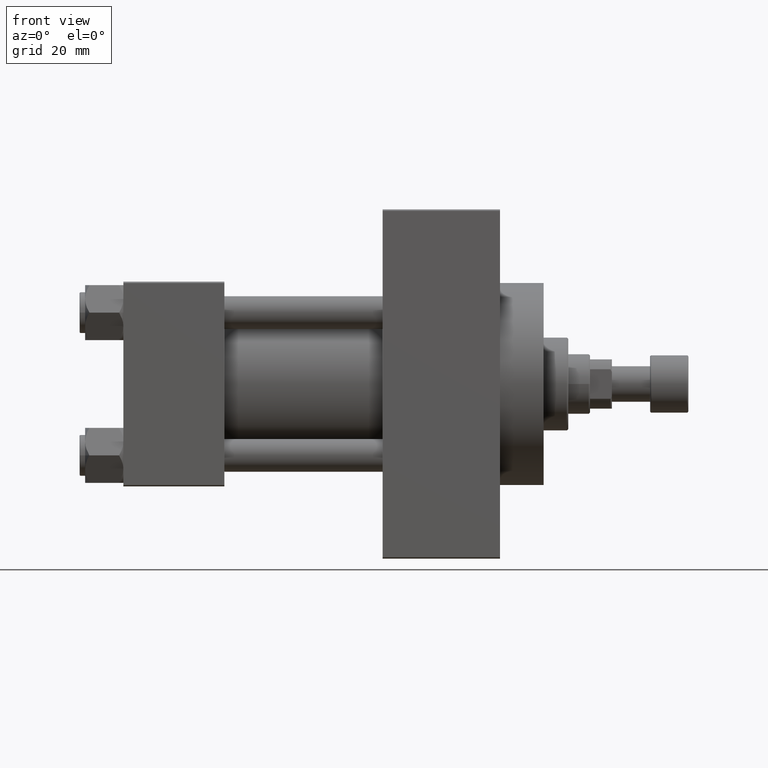
[diagram: clean part render]
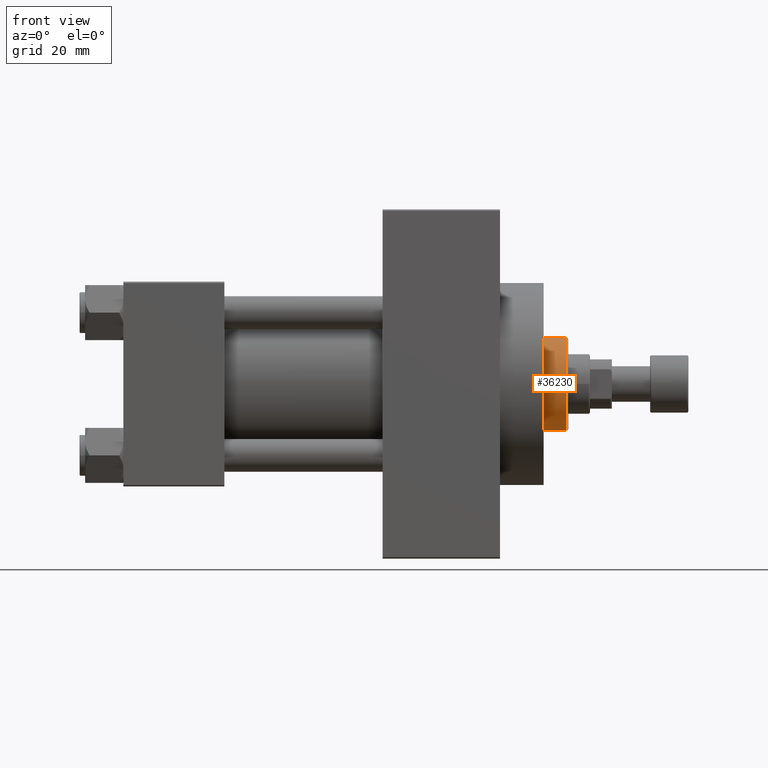
[diagram: same view with one face highlighted and labeled with its STEP entity id]
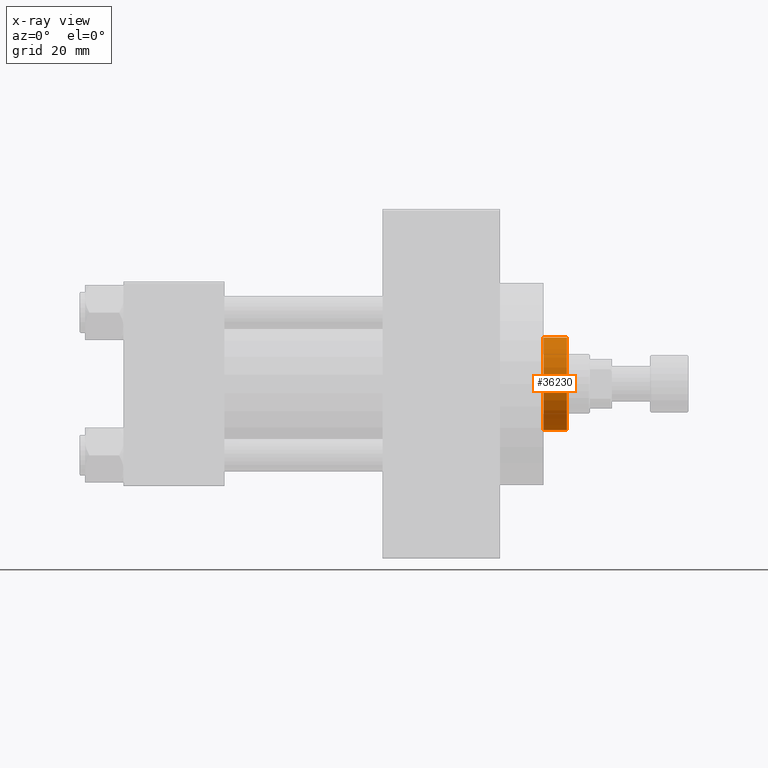
[diagram: x-ray of the same camera — body ghosted, the highlighted face saturated]
A machine part, front view. The second image highlights one B-rep face of the part: STEP entity #36230.
The next image is the same camera in x-ray: the body ghosted, the highlighted face saturated — about 0% of this face is hidden behind the body in this view.
In plain terms, the highlighted cylindrical surface (partial cylindrical patch) has radius 17 mm, axis along (-1, 0, 0).
Its self-contained STEP definition (entity closure, byte-faithful):
#1207 = CIRCLE ( 'NONE', #27476, 17.00000000000000000 ) ;
#2268 = FACE_OUTER_BOUND ( 'NONE', #38359, .T. ) ;
#2930 = DIRECTION ( 'NONE',  ( 0.000000000000000000, 0.000000000000000000, -1.000000000000000000 ) ) ;
#3233 = LINE ( 'NONE', #6628, #38587 ) ;
#6628 = CARTESIAN_POINT ( 'NONE',  ( -17.00000000000000000, 0.000000000000000000, 52.25999999999999801 ) ) ;
#6711 = EDGE_CURVE ( 'NONE', #38531, #25536, #3233, .T. ) ;
#8701 = AXIS2_PLACEMENT_3D ( 'NONE', #38764, #31052, #27420 ) ;
#9187 = ORIENTED_EDGE ( 'NONE', *, *, #27191, .T. ) ;
#12121 = ORIENTED_EDGE ( 'NONE', *, *, #6711, .F. ) ;
#12804 = CIRCLE ( 'NONE', #45992, 17.00000000000000000 ) ;
#13875 = DIRECTION ( 'NONE',  ( -0.000000000000000000, -0.000000000000000000, -1.000000000000000000 ) ) ;
#19348 = DIRECTION ( 'NONE',  ( 1.000000000000000000, 0.000000000000000000, 0.000000000000000000 ) ) ;
#22468 = VERTEX_POINT ( 'NONE', #24830 ) ;
#22919 = ORIENTED_EDGE ( 'NONE', *, *, #22968, .T. ) ;
#22968 = EDGE_CURVE ( 'NONE', #22468, #25536, #12804, .T. ) ;
#23211 = CARTESIAN_POINT ( 'NONE',  ( 0.000000000000000000, 0.000000000000000000, 43.25999999999999801 ) ) ;
#24211 = DIRECTION ( 'NONE',  ( -0.000000000000000000, -0.000000000000000000, -1.000000000000000000 ) ) ;
#24484 = CARTESIAN_POINT ( 'NONE',  ( -17.00000000000000000, 0.000000000000000000, 51.76000000000000512 ) ) ;
#24830 = CARTESIAN_POINT ( 'NONE',  ( 17.00000000000000000, 2.081899558550500280E-15, 43.25999999999999801 ) ) ;
#25536 = VERTEX_POINT ( 'NONE', #35552 ) ;
#26366 = EDGE_CURVE ( 'NONE', #38531, #27085, #1207, .T. ) ;
#26619 = DIRECTION ( 'NONE',  ( 0.000000000000000000, 0.000000000000000000, 1.000000000000000000 ) ) ;
#27085 = VERTEX_POINT ( 'NONE', #29626 ) ;
#27191 = EDGE_CURVE ( 'NONE', #27085, #22468, #42582, .T. ) ;
#27420 = DIRECTION ( 'NONE',  ( -1.000000000000000000, 0.000000000000000000, 0.000000000000000000 ) ) ;
#27476 = AXIS2_PLACEMENT_3D ( 'NONE', #29261, #2930, #33116 ) ;
#28082 = CARTESIAN_POINT ( 'NONE',  ( 17.00000000000000000, 2.081899558550500280E-15, 52.25999999999999801 ) ) ;
#29261 = CARTESIAN_POINT ( 'NONE',  ( 0.000000000000000000, 0.000000000000000000, 51.76000000000000512 ) ) ;
#29626 = CARTESIAN_POINT ( 'NONE',  ( 17.00000000000000000, 2.081899558550500280E-15, 51.76000000000000512 ) ) ;
#31052 = DIRECTION ( 'NONE',  ( -0.000000000000000000, -0.000000000000000000, -1.000000000000000000 ) ) ;
#31295 = CYLINDRICAL_SURFACE ( 'NONE', #8701, 17.00000000000000000 ) ;
#31563 = VECTOR ( 'NONE', #24211, 1000.000000000000000 ) ;
#33116 = DIRECTION ( 'NONE',  ( 1.000000000000000000, 0.000000000000000000, 0.000000000000000000 ) ) ;
#35552 = CARTESIAN_POINT ( 'NONE',  ( -17.00000000000000000, 0.000000000000000000, 43.25999999999999801 ) ) ;
#36230 = ADVANCED_FACE ( 'NONE', ( #2268 ), #31295, .T. ) ;
#38359 = EDGE_LOOP ( 'NONE', ( #39825, #9187, #22919, #12121 ) ) ;
#38531 = VERTEX_POINT ( 'NONE', #24484 ) ;
#38587 = VECTOR ( 'NONE', #13875, 1000.000000000000000 ) ;
#38764 = CARTESIAN_POINT ( 'NONE',  ( 0.000000000000000000, 0.000000000000000000, 52.25999999999999801 ) ) ;
#39825 = ORIENTED_EDGE ( 'NONE', *, *, #26366, .T. ) ;
#42582 = LINE ( 'NONE', #28082, #31563 ) ;
#45992 = AXIS2_PLACEMENT_3D ( 'NONE', #23211, #26619, #19348 ) ;